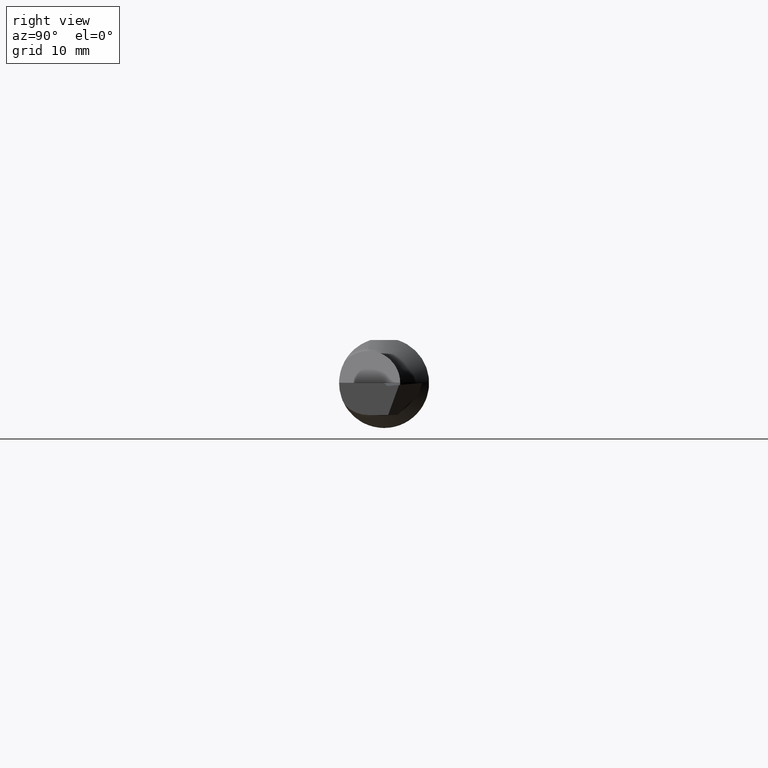
[diagram: clean part render]
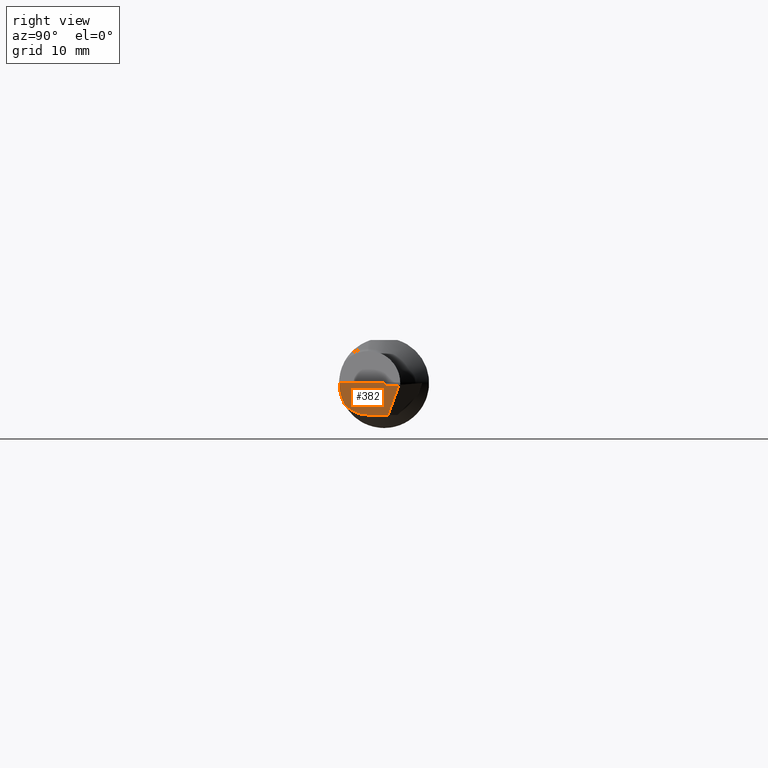
[diagram: same view with one face highlighted and labeled with its STEP entity id]
A machine part, right view. The second image highlights one B-rep face of the part: STEP entity #382.
In plain terms, the highlighted planar face has unit normal (1, 0, 0).
Its self-contained STEP definition (entity closure, byte-faithful):
#9 = CARTESIAN_POINT ( 'NONE',  ( 2.500000000000000000, 0.2999999999999999889, -6.429183357567480113E-17 ) ) ;
#39 = AXIS2_PLACEMENT_3D ( 'NONE', #890, #480, #406 ) ;
#48 = DIRECTION ( 'NONE',  ( 0.000000000000000000, -0.9961946980917453232, -0.08715574274766091367 ) ) ;
#70 = EDGE_CURVE ( 'NONE', #491, #843, #780, .T. ) ;
#73 = AXIS2_PLACEMENT_3D ( 'NONE', #544, #199, #604 ) ;
#75 = AXIS2_PLACEMENT_3D ( 'NONE', #423, #678, #255 ) ;
#98 = VERTEX_POINT ( 'NONE', #617 ) ;
#119 = EDGE_CURVE ( 'NONE', #898, #308, #927, .T. ) ;
#138 = ORIENTED_EDGE ( 'NONE', *, *, #316, .T. ) ;
#175 = EDGE_LOOP ( 'NONE', ( #184, #783, #877, #248, #725, #847, #138 ) ) ;
#178 = EDGE_CURVE ( 'NONE', #843, #98, #274, .T. ) ;
#184 = ORIENTED_EDGE ( 'NONE', *, *, #778, .F. ) ;
#199 = DIRECTION ( 'NONE',  ( 1.000000000000000000, 0.000000000000000000, 0.000000000000000000 ) ) ;
#208 = DIRECTION ( 'NONE',  ( 0.000000000000000000, -0.3421230293284966417, -0.9396551669645054616 ) ) ;
#215 = FACE_OUTER_BOUND ( 'NONE', #175, .T. ) ;
#248 = ORIENTED_EDGE ( 'NONE', *, *, #765, .F. ) ;
#255 = DIRECTION ( 'NONE',  ( 0.000000000000000000, 0.000000000000000000, 1.000000000000000000 ) ) ;
#274 = B_SPLINE_CURVE_WITH_KNOTS ( 'NONE', 3,
 ( #733, #489, #415, #398 ),
 .UNSPECIFIED., .F., .F.,
 ( 4, 4 ),
 ( 0.008990267065048357029, 0.009370042637900047322 ),
 .UNSPECIFIED. ) ;
#293 = CARTESIAN_POINT ( 'NONE',  ( 2.500000000000000000, -0.1560999999999998500, -6.429183357567480113E-17 ) ) ;
#308 = VERTEX_POINT ( 'NONE', #517 ) ;
#316 = EDGE_CURVE ( 'NONE', #776, #1015, #579, .T. ) ;
#340 = DIRECTION ( 'NONE',  ( -0.000000000000000000, 1.000000000000000000, -0.000000000000000000 ) ) ;
#355 = VECTOR ( 'NONE', #833, 39.37007874015748143 ) ;
#382 = ADVANCED_FACE ( 'NONE', ( #215 ), #932, .T. ) ;
#386 = CARTESIAN_POINT ( 'NONE',  ( 2.500000000000000000, -0.05509999999999984355, -0.1109999999999999737 ) ) ;
#398 = CARTESIAN_POINT ( 'NONE',  ( 2.500000000000000000, 0.0003894951217566267640, -6.429183357567480113E-17 ) ) ;
#406 = DIRECTION ( 'NONE',  ( 0.000000000000000000, 0.000000000000000000, -1.000000000000000000 ) ) ;
#415 = CARTESIAN_POINT ( 'NONE',  ( 2.500000000000000000, 0.003910293907895272432, -0.003527598698383563498 ) ) ;
#423 = CARTESIAN_POINT ( 'NONE',  ( 2.500000000000000000, -0.05509999999999982967, 0.000000000000000000 ) ) ;
#462 = CIRCLE ( 'NONE', #75, 0.1109999999999999876 ) ;
#477 = VECTOR ( 'NONE', #48, 39.37007874015748143 ) ;
#480 = DIRECTION ( 'NONE',  ( 1.000000000000000000, 0.000000000000000000, 0.000000000000000000 ) ) ;
#489 = CARTESIAN_POINT ( 'NONE',  ( 2.500000000000000000, 0.007431566834230300851, -0.007054720336019226767 ) ) ;
#491 = VERTEX_POINT ( 'NONE', #1024 ) ;
#503 = CARTESIAN_POINT ( 'NONE',  ( 2.500000000000000000, 0.1097552276659293918, -0.1109999999999999876 ) ) ;
#517 = CARTESIAN_POINT ( 'NONE',  ( 2.500000000000000000, -0.1368622504537206075, -0.07507286061382667519 ) ) ;
#544 = CARTESIAN_POINT ( 'NONE',  ( 2.500000000000000000, 0.000000000000000000, 0.000000000000000000 ) ) ;
#545 = CARTESIAN_POINT ( 'NONE',  ( 2.500000000000000000, 0.001001919145193789920, -0.01145198823270259132 ) ) ;
#579 = LINE ( 'NONE', #503, #355 ) ;
#604 = DIRECTION ( 'NONE',  ( 0.000000000000000000, 0.000000000000000000, -1.000000000000000000 ) ) ;
#617 = CARTESIAN_POINT ( 'NONE',  ( 2.500000000000000000, 0.0003894951217566267640, -6.429183357567480113E-17 ) ) ;
#651 = CARTESIAN_POINT ( 'NONE',  ( 2.500000000000000000, 0.01412651464526253585, -0.1109999999999999876 ) ) ;
#678 = DIRECTION ( 'NONE',  ( 1.000000000000000000, -0.000000000000000000, -0.000000000000000000 ) ) ;
#704 = VECTOR ( 'NONE', #340, 39.37007874015748143 ) ;
#719 = LINE ( 'NONE', #946, #774 ) ;
#724 = EDGE_CURVE ( 'NONE', #308, #776, #462, .T. ) ;
#725 = ORIENTED_EDGE ( 'NONE', *, *, #119, .T. ) ;
#733 = CARTESIAN_POINT ( 'NONE',  ( 2.500000000000000000, 0.01095332577398697160, -0.01058135296654651343 ) ) ;
#765 = EDGE_CURVE ( 'NONE', #898, #98, #980, .T. ) ;
#774 = VECTOR ( 'NONE', #208, 39.37007874015748143 ) ;
#776 = VERTEX_POINT ( 'NONE', #386 ) ;
#778 = EDGE_CURVE ( 'NONE', #491, #1015, #719, .T. ) ;
#780 = LINE ( 'NONE', #545, #477 ) ;
#783 = ORIENTED_EDGE ( 'NONE', *, *, #70, .T. ) ;
#833 = DIRECTION ( 'NONE',  ( -0.000000000000000000, 1.000000000000000000, -1.035699637927244910E-16 ) ) ;
#843 = VERTEX_POINT ( 'NONE', #1033 ) ;
#847 = ORIENTED_EDGE ( 'NONE', *, *, #724, .T. ) ;
#877 = ORIENTED_EDGE ( 'NONE', *, *, #178, .T. ) ;
#890 = CARTESIAN_POINT ( 'NONE',  ( 2.500000000000000000, 0.000000000000000000, 0.000000000000000000 ) ) ;
#898 = VERTEX_POINT ( 'NONE', #293 ) ;
#927 = CIRCLE ( 'NONE', #39, 0.1560999999999999888 ) ;
#932 = PLANE ( 'NONE',  #73 ) ;
#946 = CARTESIAN_POINT ( 'NONE',  ( 2.500000000000000000, 0.04815705361646836768, -0.01753370560396582192 ) ) ;
#980 = LINE ( 'NONE', #9, #704 ) ;
#1015 = VERTEX_POINT ( 'NONE', #651 ) ;
#1024 = CARTESIAN_POINT ( 'NONE',  ( 2.500000000000000000, 0.05199573487638509128, -0.006990607446293283823 ) ) ;
#1033 = CARTESIAN_POINT ( 'NONE',  ( 2.500000000000000000, 0.01095332577398697160, -0.01058135296654651343 ) ) ;